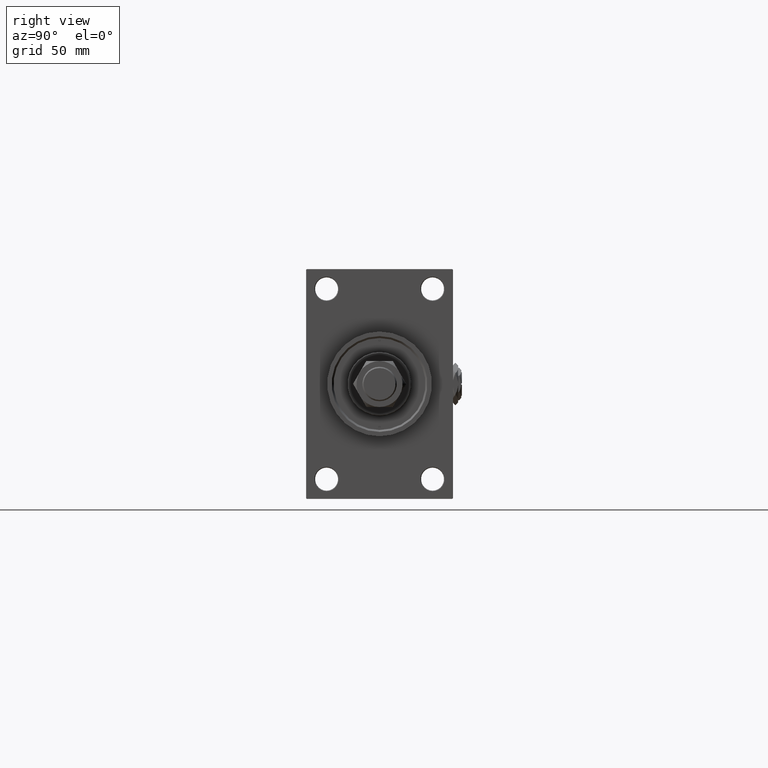
[diagram: clean part render]
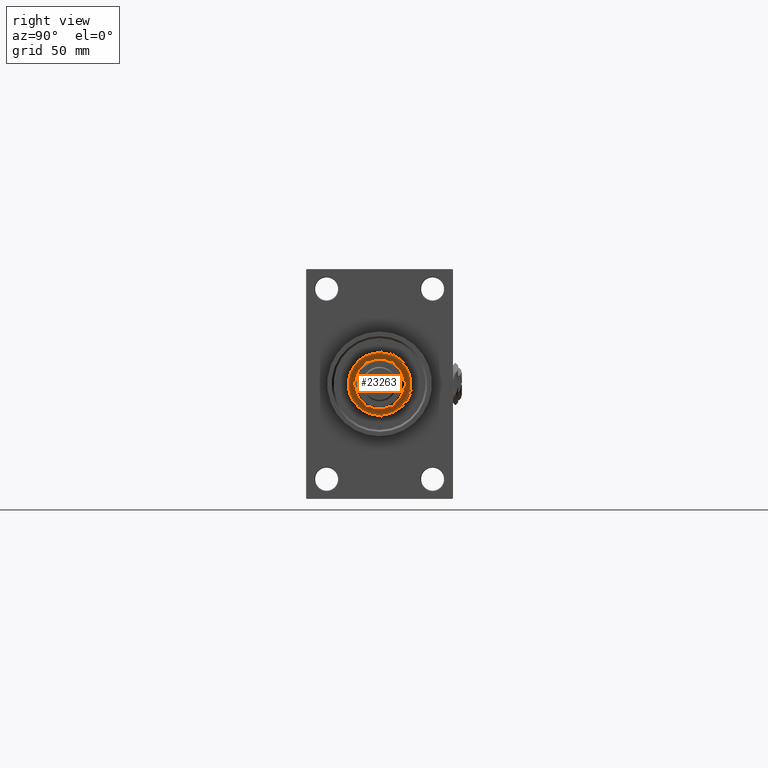
[diagram: same view with one face highlighted and labeled with its STEP entity id]
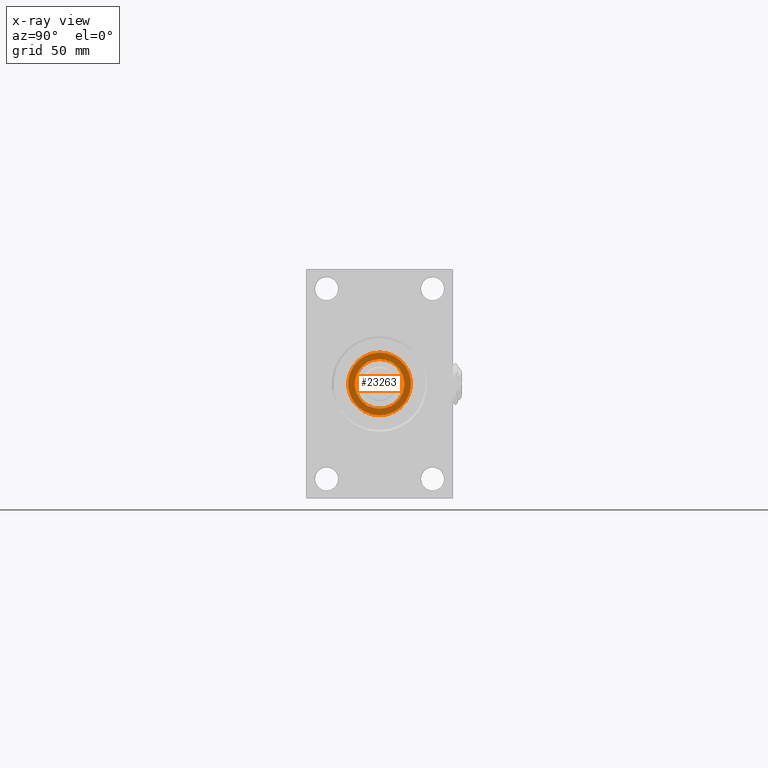
[diagram: x-ray of the same camera — body ghosted, the highlighted face saturated]
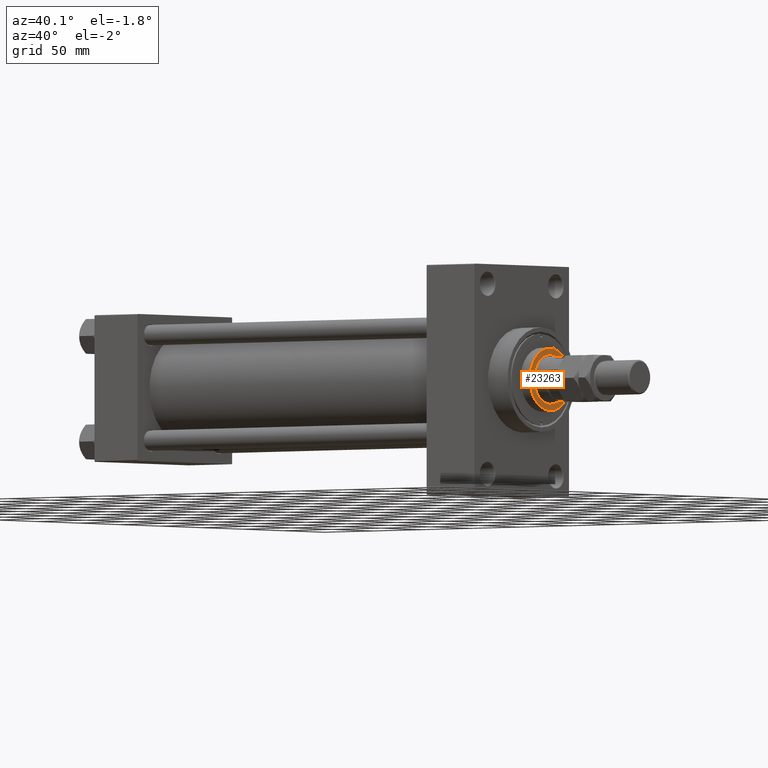
[diagram: same view with one face highlighted and labeled with its STEP entity id]
A machine part, right view. The second image highlights one B-rep face of the part: STEP entity #23263.
The next image is the same camera in x-ray: the body ghosted, the highlighted face saturated — about 0% of this face is hidden behind the body in this view.
A second angle (auxiliary view) of the same face is appended — the face is thin or edge-on in the first view.
In plain terms, the highlighted planar face has unit normal (1, -0, -0).
Its self-contained STEP definition (entity closure, byte-faithful):
#1064 = EDGE_CURVE ( 'NONE', #37191, #30481, #14017, .T. ) ;
#1155 = EDGE_CURVE ( 'NONE', #30481, #37191, #41622, .T. ) ;
#3668 = DIRECTION ( 'NONE',  ( 1.000000000000000000, 0.000000000000000000, 0.000000000000000000 ) ) ;
#4103 = EDGE_CURVE ( 'NONE', #4497, #12218, #26674, .T. ) ;
#4497 = VERTEX_POINT ( 'NONE', #14194 ) ;
#6975 = CARTESIAN_POINT ( 'NONE',  ( 0.000000000000000000, 0.000000000000000000, 52.25999999999999801 ) ) ;
#7219 = ORIENTED_EDGE ( 'NONE', *, *, #18266, .F. ) ;
#7444 = DIRECTION ( 'NONE',  ( 1.000000000000000000, 0.000000000000000000, -0.000000000000000000 ) ) ;
#9212 = CARTESIAN_POINT ( 'NONE',  ( -19.50000000000000000, 2.388061258337338939E-15, 52.25999999999999801 ) ) ;
#12218 = VERTEX_POINT ( 'NONE', #9212 ) ;
#14017 = CIRCLE ( 'NONE', #43212, 24.49999999999998224 ) ;
#14194 = CARTESIAN_POINT ( 'NONE',  ( 19.50000000000000000, 0.000000000000000000, 52.25999999999999801 ) ) ;
#15029 = CARTESIAN_POINT ( 'NONE',  ( 0.000000000000000000, 0.000000000000000000, 52.25999999999999801 ) ) ;
#15715 = CARTESIAN_POINT ( 'NONE',  ( 0.000000000000000000, 0.000000000000000000, 52.25999999999999801 ) ) ;
#18266 = EDGE_CURVE ( 'NONE', #12218, #4497, #30530, .T. ) ;
#19214 = FACE_BOUND ( 'NONE', #34810, .T. ) ;
#19351 = CARTESIAN_POINT ( 'NONE',  ( 0.000000000000000000, 0.000000000000000000, 52.25999999999999801 ) ) ;
#19463 = PLANE ( 'NONE',  #39753 ) ;
#21864 = EDGE_LOOP ( 'NONE', ( #39662, #30735 ) ) ;
#22923 = DIRECTION ( 'NONE',  ( 1.000000000000000000, 0.000000000000000000, 0.000000000000000000 ) ) ;
#23130 = DIRECTION ( 'NONE',  ( 0.000000000000000000, 0.000000000000000000, 1.000000000000000000 ) ) ;
#23263 = ADVANCED_FACE ( 'NONE', ( #19214, #47392 ), #19463, .T. ) ;
#23274 = DIRECTION ( 'NONE',  ( 1.000000000000000000, 0.000000000000000000, 0.000000000000000000 ) ) ;
#23295 = DIRECTION ( 'NONE',  ( 0.000000000000000000, 0.000000000000000000, 1.000000000000000000 ) ) ;
#23373 = CARTESIAN_POINT ( 'NONE',  ( 24.49999999999998224, 3.031000827889698072E-15, 52.25999999999999801 ) ) ;
#26674 = CIRCLE ( 'NONE', #50819, 19.50000000000000000 ) ;
#27881 = DIRECTION ( 'NONE',  ( 0.000000000000000000, 0.000000000000000000, 1.000000000000000000 ) ) ;
#30481 = VERTEX_POINT ( 'NONE', #44146 ) ;
#30530 = CIRCLE ( 'NONE', #49645, 19.50000000000000000 ) ;
#30735 = ORIENTED_EDGE ( 'NONE', *, *, #1064, .T. ) ;
#31570 = AXIS2_PLACEMENT_3D ( 'NONE', #19351, #39710, #23274 ) ;
#32556 = ORIENTED_EDGE ( 'NONE', *, *, #4103, .F. ) ;
#34810 = EDGE_LOOP ( 'NONE', ( #32556, #7219 ) ) ;
#37191 = VERTEX_POINT ( 'NONE', #23373 ) ;
#39662 = ORIENTED_EDGE ( 'NONE', *, *, #1155, .T. ) ;
#39710 = DIRECTION ( 'NONE',  ( 0.000000000000000000, 0.000000000000000000, 1.000000000000000000 ) ) ;
#39731 = DIRECTION ( 'NONE',  ( 1.000000000000000000, 0.000000000000000000, 0.000000000000000000 ) ) ;
#39753 = AXIS2_PLACEMENT_3D ( 'NONE', #15029, #23130, #7444 ) ;
#39977 = CARTESIAN_POINT ( 'NONE',  ( 0.000000000000000000, 0.000000000000000000, 52.25999999999999801 ) ) ;
#41622 = CIRCLE ( 'NONE', #31570, 24.49999999999998224 ) ;
#43212 = AXIS2_PLACEMENT_3D ( 'NONE', #39977, #43636, #3668 ) ;
#43636 = DIRECTION ( 'NONE',  ( 0.000000000000000000, 0.000000000000000000, 1.000000000000000000 ) ) ;
#44146 = CARTESIAN_POINT ( 'NONE',  ( -24.49999999999998224, 0.000000000000000000, 52.25999999999999801 ) ) ;
#47392 = FACE_OUTER_BOUND ( 'NONE', #21864, .T. ) ;
#49645 = AXIS2_PLACEMENT_3D ( 'NONE', #15715, #23295, #39731 ) ;
#50819 = AXIS2_PLACEMENT_3D ( 'NONE', #6975, #27881, #22923 ) ;